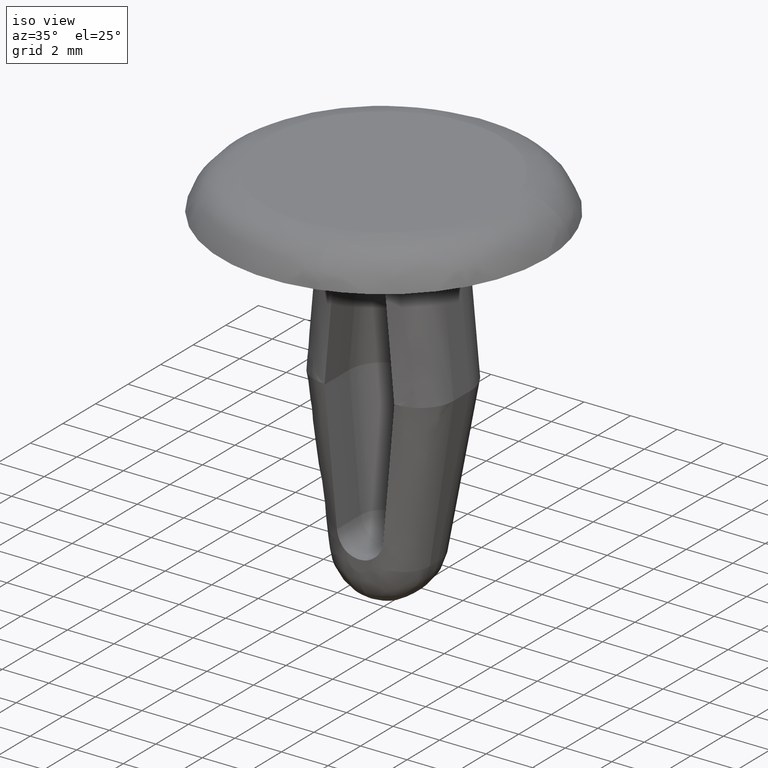
[diagram: clean part render]
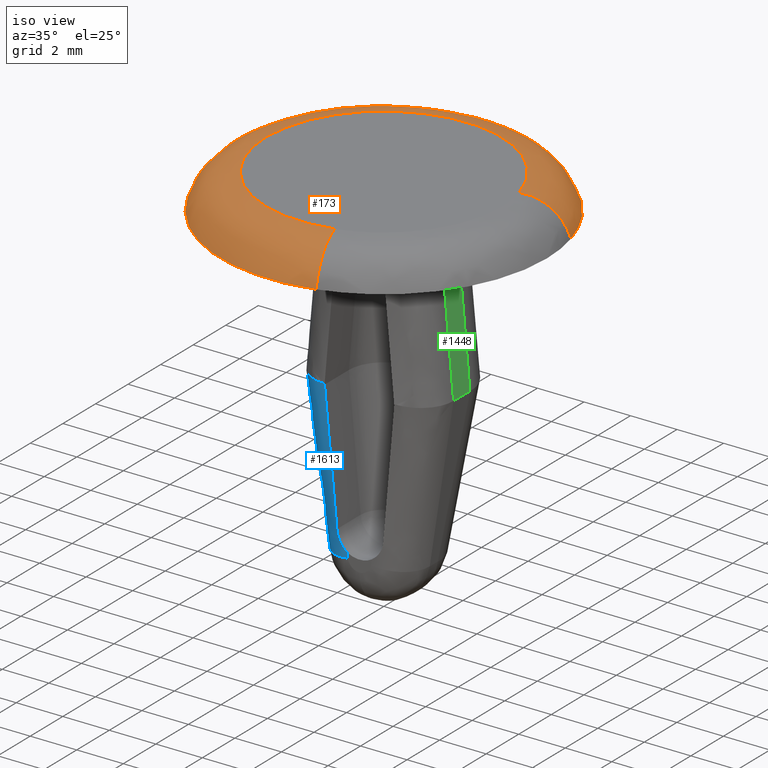
[diagram: same view with three faces highlighted in distinct colors, each labeled with its STEP entity id]
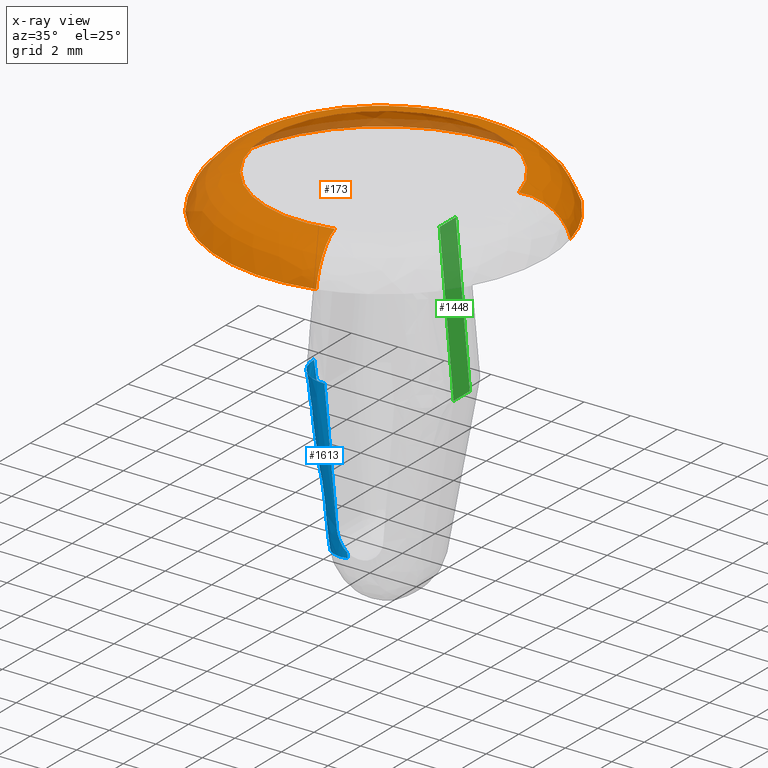
[diagram: x-ray of the same camera — body ghosted, the three highlighted faces saturated]
A machine part, iso view with three faces highlighted in distinct colors.
The next image is the same camera in x-ray (body ghosted, the three faces saturated) — at least one of them is partly hidden behind the body in this view.
Their STEP definitions:

[orange] entity #173 — the highlighted face is a freeform B-spline surface patch.
#44=CARTESIAN_POINT('',(1.289225148862748,-4.771457981272971,1.496339688289997));
#45=CARTESIAN_POINT('',(-3.482232832410224,-6.060683130135720,1.496339688289998));
#46=CARTESIAN_POINT('',(-4.771457981272971,-1.289225148862748,1.496339688289997));
#47=CARTESIAN_POINT('',(-6.060683130135720,3.482232832410222,1.496339688289998));
#48=CARTESIAN_POINT('',(-1.289225148862748,4.771457981272970,1.496339688289997));
#49=CARTESIAN_POINT('',(3.482232832410222,6.060683130135720,1.496339688289998));
#50=CARTESIAN_POINT('',(4.771457981272970,1.289225148862748,1.496339688289997));
#51=CARTESIAN_POINT('',(1.745554547767291,-6.460345724746849,1.602327894564256));
#52=CARTESIAN_POINT('',(-4.714791176979558,-8.205900272514141,1.602327894564256));
#53=CARTESIAN_POINT('',(-6.460345724746849,-1.745554547767291,1.602327894564256));
#54=CARTESIAN_POINT('',(-8.205900272514141,4.714791176979556,1.602327894564256));
#55=CARTESIAN_POINT('',(-1.745554547767291,6.460345724746849,1.602327894564256));
#56=CARTESIAN_POINT('',(4.714791176979556,8.205900272514141,1.602327894564256));
#57=CARTESIAN_POINT('',(6.460345724746849,1.745554547767293,1.602327894564256));
#58=CARTESIAN_POINT('',(1.832855570092401,-6.783449226190245,-0.118077432411370));
#59=CARTESIAN_POINT('',(-4.950593656097843,-8.616304796282646,-0.118077432411370));
#60=CARTESIAN_POINT('',(-6.783449226190245,-1.832855570092403,-0.118077432411370));
#61=CARTESIAN_POINT('',(-8.616304796282646,4.950593656097842,-0.118077432411370));
#62=CARTESIAN_POINT('',(-1.832855570092403,6.783449226190245,-0.118077432411370));
#63=CARTESIAN_POINT('',(4.950593656097840,8.616304796282648,-0.118077432411370));
#64=CARTESIAN_POINT('',(6.783449226190244,1.832855570092403,-0.118077432411370));
#72=(BOUNDED_SURFACE()B_SPLINE_SURFACE(2,2,((#44,#51,#58),(#45,#52,#59),(#46,#53,#60),(#47,#54,#61),(#48,#55,#62),(#49,#56,#63),(#50,#57,#64)),.UNSPECIFIED.,.F.,.F.,.U.)B_SPLINE_SURFACE_WITH_KNOTS((3,2,2,3),(3,3),(0.0,11.642221298317200,23.284442596634399,34.926663894951602),(0.0,3.009315640970691),.UNSPECIFIED.)GEOMETRIC_REPRESENTATION_ITEM()RATIONAL_B_SPLINE_SURFACE(((0.919660965812549,0.691487411654187,0.919203158354624),(0.650298505318623,0.488955437885810,0.649974786560646),(0.919660965812549,0.691487411654187,0.919203158354624),(0.650298505318623,0.488955437885810,0.649974786560646),(0.919660965812549,0.691487411654187,0.919203158354624),(0.650298505318623,0.488955437885810,0.649974786560646),(0.919660965812549,0.691487411654187,0.919203158354624)))REPRESENTATION_ITEM('')SURFACE());
#73=CARTESIAN_POINT('',(1.320772793002441,-4.888216685931189,1.499999999999702));
#74=VERTEX_POINT('',#73);
#75=CARTESIAN_POINT('',(-5.063507000000000,0.0,1.499999999999702));
#76=VERTEX_POINT('',#75);
#77=CARTESIAN_POINT('',(1.320772793002441,-4.888216685931189,1.499999999999702));
#78=CARTESIAN_POINT('',(0.672018485826649,-5.063507000000000,1.499999999999703));
#79=CARTESIAN_POINT('',(0.0,-5.063507000000000,1.499999999999702));
#80=CARTESIAN_POINT('',(-5.063507000000000,-5.063507000000000,1.499999999999703));
#81=CARTESIAN_POINT('',(-5.063507000000000,0.0,1.499999999999702));
#89=(BOUNDED_CURVE()B_SPLINE_CURVE(2,(#77,#78,#79,#80,#81),.UNSPECIFIED.,.F.,.U.)B_SPLINE_CURVE_WITH_KNOTS((3,2,3),(0.705522207670522,0.750000000000000,1.0),.UNSPECIFIED.)CURVE()GEOMETRIC_REPRESENTATION_ITEM()RATIONAL_B_SPLINE_CURVE((0.914323587275434,0.947891024955612,1.0,0.707106781186548,1.0))REPRESENTATION_ITEM(''));
#90=EDGE_CURVE('',#74,#76,#89,.T.);
#91=ORIENTED_EDGE('',*,*,#90,.T.);
#92=CARTESIAN_POINT('',(4.888216685964117,1.320772793019216,1.499999999999701));
#93=VERTEX_POINT('',#92);
#94=CARTESIAN_POINT('',(-5.063507000000000,0.0,1.499999999999702));
#95=CARTESIAN_POINT('',(-5.063507000000000,5.063507000000000,1.499999999999703));
#96=CARTESIAN_POINT('',(0.0,5.063507000000000,1.499999999999702));
#97=CARTESIAN_POINT('',(3.876947785659141,5.063507000000000,1.499999999999702));
#98=CARTESIAN_POINT('',(4.888216685964118,1.320772793019216,1.499999999999702));
#106=(BOUNDED_CURVE()B_SPLINE_CURVE(2,(#94,#95,#96,#97,#98),.UNSPECIFIED.,.F.,.U.)B_SPLINE_CURVE_WITH_KNOTS((3,2,3),(0.0,0.250000000000000,0.455522207670037),.UNSPECIFIED.)CURVE()GEOMETRIC_REPRESENTATION_ITEM()RATIONAL_B_SPLINE_CURVE((1.0,0.707106781186548,1.0,0.759215756231504,0.914323587274701))REPRESENTATION_ITEM(''));
#107=EDGE_CURVE('',#76,#93,#106,.T.);
#108=ORIENTED_EDGE('',*,*,#107,.T.);
#109=CARTESIAN_POINT('',(6.757671399579767,1.825886588759436,0.000001696361187));
#110=VERTEX_POINT('',#109);
#111=CARTESIAN_POINT('',(4.888216685964117,1.320772793019216,1.499999999999702));
#112=CARTESIAN_POINT('',(6.383779060648757,1.724864633090951,1.500000080194893));
#113=CARTESIAN_POINT('',(6.757671399579768,1.825886588759436,0.000001696361187));
#121=(BOUNDED_CURVE()B_SPLINE_CURVE(2,(#111,#112,#113),.UNSPECIFIED.,.F.,.U.)B_SPLINE_CURVE_WITH_KNOTS((3,3),(-1.696660183363669,-0.304878069244840),.UNSPECIFIED.)CURVE()GEOMETRIC_REPRESENTATION_ITEM()RATIONAL_B_SPLINE_CURVE((0.899876956295912,0.711250764698209,0.899460462375077))REPRESENTATION_ITEM(''));
#122=EDGE_CURVE('',#93,#110,#121,.T.);
#123=ORIENTED_EDGE('',*,*,#122,.T.);
#124=CARTESIAN_POINT('',(-7.0,0.0,0.0));
#125=VERTEX_POINT('',#124);
#126=CARTESIAN_POINT('',(-7.0,0.0,0.0));
#127=CARTESIAN_POINT('',(-7.000000070560645,6.999999980934891,0.000000112568592));
#128=CARTESIAN_POINT('',(-0.000000602220226,6.999999837283323,0.000000960749185));
#129=CARTESIAN_POINT('',(5.359653822516115,6.999999727294349,0.000001610171359));
#130=CARTESIAN_POINT('',(6.757671399579767,1.825886588759436,0.000001696361187));
#138=(BOUNDED_CURVE()B_SPLINE_CURVE(2,(#126,#127,#128,#129,#130),.UNSPECIFIED.,.F.,.U.)B_SPLINE_CURVE_WITH_KNOTS((3,2,3),(0.0,0.250000000000000,0.455522295401900),.UNSPECIFIED.)CURVE()GEOMETRIC_REPRESENTATION_ITEM()RATIONAL_B_SPLINE_CURVE((1.0,0.707106781186547,1.0,0.759215653447233,0.914323719697437))REPRESENTATION_ITEM(''));
#139=EDGE_CURVE('',#125,#110,#138,.T.);
#140=ORIENTED_EDGE('',*,*,#139,.F.);
#141=CARTESIAN_POINT('',(1.825887024200901,-6.757671383867088,0.000001315215444));
#142=VERTEX_POINT('',#141);
#143=CARTESIAN_POINT('',(1.825887024200900,-6.757671383867087,0.000001315215444));
#144=CARTESIAN_POINT('',(0.929023984368437,-6.999999080884981,0.000001248391107));
#145=CARTESIAN_POINT('',(-0.000000230978323,-6.999999145141191,0.000001161114891));
#146=CARTESIAN_POINT('',(-7.000000100161699,-6.999999629298062,0.000000503507169));
#147=CARTESIAN_POINT('',(-7.0,0.0,0.0));
#155=(BOUNDED_CURVE()B_SPLINE_CURVE(2,(#143,#144,#145,#146,#147),.UNSPECIFIED.,.F.,.U.)B_SPLINE_CURVE_WITH_KNOTS((3,2,3),(0.705522285600916,0.750000000000000,1.0),.UNSPECIFIED.)CURVE()GEOMETRIC_REPRESENTATION_ITEM()RATIONAL_B_SPLINE_CURVE((0.914323704903795,0.947891116256748,1.0,0.707106781186547,1.0))REPRESENTATION_ITEM(''));
#156=EDGE_CURVE('',#142,#125,#155,.T.);
#157=ORIENTED_EDGE('',*,*,#156,.F.);
#158=CARTESIAN_POINT('',(1.320772793002441,-4.888216685931188,1.499999999999701));
#159=CARTESIAN_POINT('',(1.724864920117306,-6.383779309309028,1.500000080250952));
#160=CARTESIAN_POINT('',(1.825887024200900,-6.757671383867089,0.000001315215444));
#168=(BOUNDED_CURVE()B_SPLINE_CURVE(2,(#158,#159,#160),.UNSPECIFIED.,.F.,.U.)B_SPLINE_CURVE_WITH_KNOTS((3,3),(-1.696660183404775,-0.304877845629843),.UNSPECIFIED.)CURVE()GEOMETRIC_REPRESENTATION_ITEM()RATIONAL_B_SPLINE_CURVE((0.899876956307054,0.711250734386437,0.899460522853679))REPRESENTATION_ITEM(''));
#169=EDGE_CURVE('',#74,#142,#168,.T.);
#170=ORIENTED_EDGE('',*,*,#169,.F.);
#171=EDGE_LOOP('',(#91,#108,#123,#140,#157,#170));
#172=FACE_OUTER_BOUND('',#171,.T.);
#173=ADVANCED_FACE('',(#172),#72,.T.);

[blue] entity #1613 — the highlighted face is a freeform B-spline surface patch.
#275=CARTESIAN_POINT('',(-0.494276056054066,-1.500000000000000,-13.075439912590300));
#276=VERTEX_POINT('',#275);
#292=CARTESIAN_POINT('',(-1.977104000000000,0.0,-13.301766000000001));
#293=VERTEX_POINT('',#292);
#294=CARTESIAN_POINT('',(-1.977104000000000,0.0,-13.301766000000001));
#295=CARTESIAN_POINT('',(-1.977103370639973,-0.621320343560029,-13.301765242870136));
#296=CARTESIAN_POINT('',(-1.542793334406207,-1.060660171780115,-13.235475899170350));
#297=CARTESIAN_POINT('',(-1.108483298172441,-1.500000000000203,-13.169186555470558));
#298=CARTESIAN_POINT('',(-0.494276056054066,-1.500000000000000,-13.075439912590300));
#306=(BOUNDED_CURVE()B_SPLINE_CURVE(2,(#294,#295,#296,#297,#298),.UNSPECIFIED.,.F.,.U.)B_SPLINE_CURVE_WITH_KNOTS((3,2,3),(0.0,0.500000000000000,1.0),.UNSPECIFIED.)CURVE()GEOMETRIC_REPRESENTATION_ITEM()RATIONAL_B_SPLINE_CURVE((1.0,0.923879532511128,1.0,0.923879532511128,1.0))REPRESENTATION_ITEM(''));
#307=EDGE_CURVE('',#293,#276,#306,.T.);
#630=CARTESIAN_POINT('',(-0.995811079098442,-1.459235425913862,-12.091430138490299));
#631=VERTEX_POINT('',#630);
#638=CARTESIAN_POINT('',(-1.500000000000000,-1.499901740542374,-6.599999000000000));
#639=VERTEX_POINT('',#638);
#645=CARTESIAN_POINT('',(-0.995811079098442,-1.459235425913862,-12.091430138490299));
#646=CARTESIAN_POINT('',(-1.244441099725006,-1.497986206234871,-9.383447910735706));
#647=CARTESIAN_POINT('',(-1.500000000000000,-1.499901740542374,-6.599999000000000));
#655=(BOUNDED_CURVE()B_SPLINE_CURVE(2,(#645,#646,#647),.UNSPECIFIED.,.F.,.U.)CURVE()GEOMETRIC_REPRESENTATION_ITEM()QUASI_UNIFORM_CURVE()RATIONAL_B_SPLINE_CURVE((1.0,0.993833526487846,1.0))REPRESENTATION_ITEM(''));
#656=EDGE_CURVE('',#631,#639,#655,.T.);
#707=CARTESIAN_POINT('',(-0.528885359470683,-1.499999999999946,-12.848693901034739));
#708=VERTEX_POINT('',#707);
#709=CARTESIAN_POINT('',(-0.995811079098442,-1.459235425913906,-12.091430138490299));
#710=CARTESIAN_POINT('',(-0.988714809648796,-1.458129421185084,-12.168719966583341));
#711=CARTESIAN_POINT('',(-0.972883246141415,-1.459224303420615,-12.243649780117821));
#712=CARTESIAN_POINT('',(-0.936538634672265,-1.463682943663213,-12.352649961722109));
#713=CARTESIAN_POINT('',(-0.922242062841367,-1.465637299661188,-12.388540349967750));
#714=CARTESIAN_POINT('',(-0.889496828340912,-1.470219845140646,-12.458573420891900));
#715=CARTESIAN_POINT('',(-0.853016292704425,-1.475411895405981,-12.526051695119699));
#716=CARTESIAN_POINT('',(-0.809302796619886,-1.481126230580568,-12.588637979177410));
#717=CARTESIAN_POINT('',(-0.761933721041240,-1.486700061066207,-12.648785674888890));
#718=CARTESIAN_POINT('',(-0.736272264912440,-1.489430334108659,-12.677785646121990));
#719=CARTESIAN_POINT('',(-0.654622896319193,-1.496595888647046,-12.759887109470080));
#720=CARTESIAN_POINT('',(-0.594602237920161,-1.500000000000002,-12.807740659753710));
#721=CARTESIAN_POINT('',(-0.528885359470683,-1.499999999999946,-12.848693901034739));
#722=B_SPLINE_CURVE_WITH_KNOTS('',3,(#709,#710,#711,#712,#713,#714,#715,#716,#717,#718,#719,#720,#721),.UNSPECIFIED.,.F.,.U.,(4,2,2,1,2,2,4),(0.0,0.250000000000004,0.375000000000003,0.500000000000003,0.625000000000002,0.750000000000001,1.0),.UNSPECIFIED.);
#723=EDGE_CURVE('',#631,#708,#722,.T.);
#887=CARTESIAN_POINT('',(-1.495877109313950,-1.499987209975556,-6.554276485508760));
#888=VERTEX_POINT('',#887);
#902=CARTESIAN_POINT('',(-1.500000000000000,-1.499901740542374,-6.599999000000000));
#903=CARTESIAN_POINT('',(-1.497938613389303,-1.499964549221719,-6.577138394090987));
#904=CARTESIAN_POINT('',(-1.495877109313950,-1.499987209975556,-6.554276485508760));
#912=(BOUNDED_CURVE()B_SPLINE_CURVE(2,(#902,#903,#904),.UNSPECIFIED.,.F.,.U.)CURVE()GEOMETRIC_REPRESENTATION_ITEM()QUASI_UNIFORM_CURVE()RATIONAL_B_SPLINE_CURVE((1.0,0.999993308502745,1.0))REPRESENTATION_ITEM(''));
#913=EDGE_CURVE('',#639,#888,#912,.T.);
#1350=CARTESIAN_POINT('',(-0.528885359470683,-1.499999999999946,-12.848693901034739));
#1351=CARTESIAN_POINT('',(-0.494276056054066,-1.500000000000000,-13.075439912590300));
#1352=QUASI_UNIFORM_CURVE('',1,(#1350,#1351),.UNSPECIFIED.,.F.,.U.);
#1353=EDGE_CURVE('',#708,#276,#1352,.T.);
#1456=CARTESIAN_POINT('',(-3.000001094302145,0.0,-6.600018037354499));
#1457=VERTEX_POINT('',#1456);
#1543=CARTESIAN_POINT('',(-1.977104000000000,0.0,-13.301766000000001));
#1544=CARTESIAN_POINT('',(-3.000001094302145,0.0,-6.600018037354499));
#1545=QUASI_UNIFORM_CURVE('',1,(#1543,#1544),.UNSPECIFIED.,.F.,.U.);
#1546=EDGE_CURVE('',#293,#1457,#1545,.T.);
#1565=CARTESIAN_POINT('',(-3.000001094302145,0.0,-6.600018037354499));
#1566=CARTESIAN_POINT('',(-3.000001094302148,-1.493818392334347,-6.600018037354547));
#1567=CARTESIAN_POINT('',(-1.495877109313950,-1.499987209975555,-6.554276485508763));
#1575=(BOUNDED_CURVE()B_SPLINE_CURVE(2,(#1565,#1566,#1567),.UNSPECIFIED.,.F.,.U.)CURVE()GEOMETRIC_REPRESENTATION_ITEM()QUASI_UNIFORM_CURVE()RATIONAL_B_SPLINE_CURVE((1.0,0.708565298092205,1.0))REPRESENTATION_ITEM(''));
#1576=EDGE_CURVE('',#1457,#888,#1575,.T.);
#1590=CARTESIAN_POINT('',(-0.414062686312414,-1.498981231268216,-13.234643688772790));
#1591=CARTESIAN_POINT('',(-1.488743946014086,-1.498981231268216,-6.193619735515171));
#1592=CARTESIAN_POINT('',(-2.031185570114793,-1.559302742826568,-13.481467399272034));
#1593=CARTESIAN_POINT('',(-3.105866829816465,-1.559302742826566,-6.440443446014422));
#1594=CARTESIAN_POINT('',(-1.949648029776693,0.075580677161157,-13.469022211307150));
#1595=CARTESIAN_POINT('',(-3.024329289478364,0.075580677161158,-6.427998258049541));
#1603=(BOUNDED_SURFACE()B_SPLINE_SURFACE(1,2,((#1590,#1592,#1594),(#1591,#1593,#1595)),.UNSPECIFIED.,.F.,.F.,.U.)B_SPLINE_SURFACE_WITH_KNOTS((2,2),(3,3),(0.0,7.122566821048538),(0.0,2.640063185350997),.UNSPECIFIED.)GEOMETRIC_REPRESENTATION_ITEM()RATIONAL_B_SPLINE_SURFACE(((1.0,0.675590207615661,1.0),(1.0,0.675590207615661,1.0)))REPRESENTATION_ITEM('')SURFACE());
#1604=ORIENTED_EDGE('',*,*,#656,.T.);
#1605=ORIENTED_EDGE('',*,*,#913,.T.);
#1606=ORIENTED_EDGE('',*,*,#1576,.F.);
#1607=ORIENTED_EDGE('',*,*,#1546,.F.);
#1608=ORIENTED_EDGE('',*,*,#307,.T.);
#1609=ORIENTED_EDGE('',*,*,#1353,.F.);
#1610=ORIENTED_EDGE('',*,*,#723,.F.);
#1611=EDGE_LOOP('',(#1604,#1605,#1606,#1607,#1608,#1609,#1610));
#1612=FACE_OUTER_BOUND('',#1611,.T.);
#1613=ADVANCED_FACE('',(#1612),#1603,.T.);

[green] entity #1448 — the highlighted face is a freeform B-spline surface patch.
#1205=CARTESIAN_POINT('',(2.999998905688410,1.0,-6.599986962614341));
#1206=VERTEX_POINT('',#1205);
#1207=CARTESIAN_POINT('',(2.399998000000000,1.0,0.0));
#1208=VERTEX_POINT('',#1207);
#1209=CARTESIAN_POINT('',(2.999998905688410,1.0,-6.599986962614341));
#1210=CARTESIAN_POINT('',(2.399998000000000,1.0,0.0));
#1211=QUASI_UNIFORM_CURVE('',1,(#1209,#1210),.UNSPECIFIED.,.F.,.U.);
#1212=EDGE_CURVE('',#1206,#1208,#1211,.T.);
#1282=CARTESIAN_POINT('',(2.999998905688410,0.0,-6.599986962614341));
#1283=VERTEX_POINT('',#1282);
#1297=CARTESIAN_POINT('',(2.399998000000000,0.0,0.0));
#1298=VERTEX_POINT('',#1297);
#1299=CARTESIAN_POINT('',(2.399998000000000,0.0,0.0));
#1300=CARTESIAN_POINT('',(2.999998905688410,0.0,-6.599986962614341));
#1301=QUASI_UNIFORM_CURVE('',1,(#1299,#1300),.UNSPECIFIED.,.F.,.U.);
#1302=EDGE_CURVE('',#1298,#1283,#1301,.T.);
#1396=CARTESIAN_POINT('',(2.399998000000000,1.0,0.0));
#1397=CARTESIAN_POINT('',(2.399998000000000,0.0,0.0));
#1398=QUASI_UNIFORM_CURVE('',1,(#1396,#1397),.UNSPECIFIED.,.F.,.U.);
#1399=EDGE_CURVE('',#1208,#1298,#1398,.T.);
#1433=CARTESIAN_POINT('',(2.370027955923781,-0.049949998061806,0.329669335990530));
#1434=CARTESIAN_POINT('',(3.029968965857906,-0.049949998061806,-6.929656475630318));
#1435=CARTESIAN_POINT('',(2.370027955923781,1.049950024883896,0.329669335990530));
#1436=CARTESIAN_POINT('',(3.029968965857906,1.049950024883896,-6.929656475630317));
#1437=B_SPLINE_SURFACE_WITH_KNOTS('',1,1,((#1433,#1435),(#1434,#1436)),.UNSPECIFIED.,.F.,.F.,.U.,(2,2),(2,2),(0.0,7.289261511007652),(0.041708334948495,0.958291687403247),.UNSPECIFIED.);
#1438=CARTESIAN_POINT('',(2.999998905688410,1.0,-6.599986962614341));
#1439=CARTESIAN_POINT('',(2.999998905688410,0.0,-6.599986962614341));
#1440=QUASI_UNIFORM_CURVE('',1,(#1438,#1439),.UNSPECIFIED.,.F.,.U.);
#1441=EDGE_CURVE('',#1206,#1283,#1440,.T.);
#1442=ORIENTED_EDGE('',*,*,#1441,.F.);
#1443=ORIENTED_EDGE('',*,*,#1212,.T.);
#1444=ORIENTED_EDGE('',*,*,#1399,.T.);
#1445=ORIENTED_EDGE('',*,*,#1302,.T.);
#1446=EDGE_LOOP('',(#1442,#1443,#1444,#1445));
#1447=FACE_OUTER_BOUND('',#1446,.T.);
#1448=ADVANCED_FACE('',(#1447),#1437,.T.);